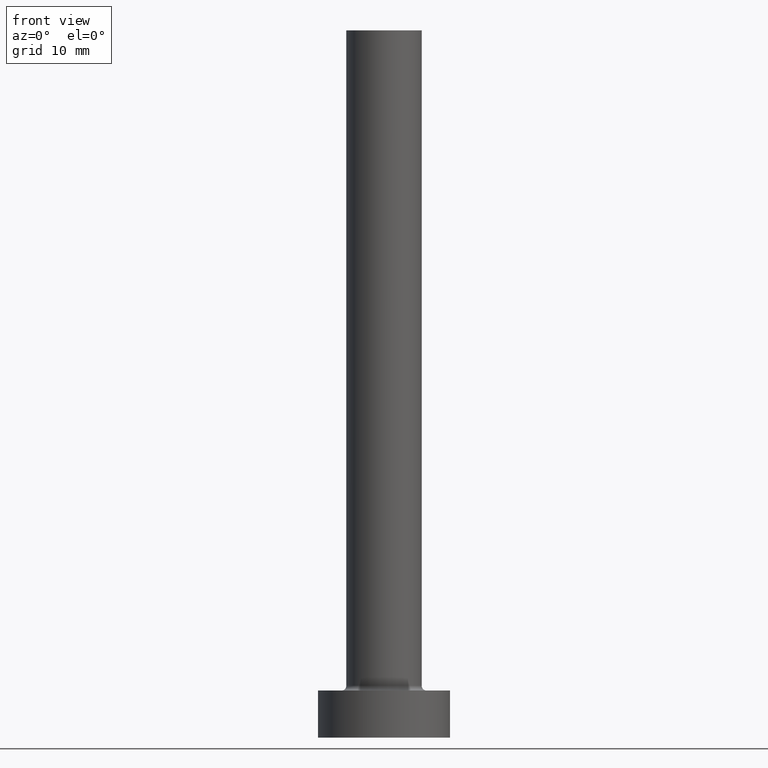
[diagram: clean part render]
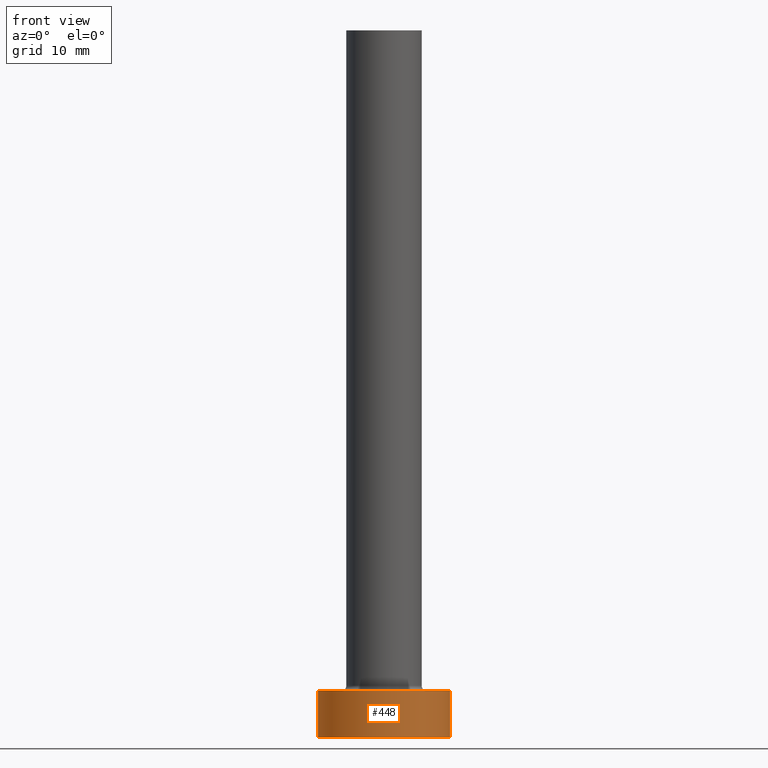
[diagram: same view with one face highlighted and labeled with its STEP entity id]
A machine part, front view. The second image highlights one B-rep face of the part: STEP entity #448.
In plain terms, the highlighted cylindrical surface (partial cylindrical patch) has radius 7 mm, axis along (-0, -0, -1).
Its self-contained STEP definition (entity closure, byte-faithful):
#19 = VERTEX_POINT ( 'NONE', #225 ) ;
#21 = DIRECTION ( 'NONE',  ( -0.000000000000000000, -0.000000000000000000, -1.000000000000000000 ) ) ;
#33 = DIRECTION ( 'NONE',  ( 0.000000000000000000, 0.000000000000000000, 1.000000000000000000 ) ) ;
#34 = CARTESIAN_POINT ( 'NONE',  ( -7.000000000000000000, 0.000000000000000000, 0.000000000000000000 ) ) ;
#63 = VERTEX_POINT ( 'NONE', #34 ) ;
#72 = CARTESIAN_POINT ( 'NONE',  ( 0.000000000000000000, 0.000000000000000000, 5.000000000000000000 ) ) ;
#75 = EDGE_CURVE ( 'NONE', #19, #63, #248, .T. ) ;
#81 = FACE_OUTER_BOUND ( 'NONE', #154, .T. ) ;
#96 = ORIENTED_EDGE ( 'NONE', *, *, #130, .F. ) ;
#107 = CARTESIAN_POINT ( 'NONE',  ( 0.000000000000000000, 0.000000000000000000, 0.000000000000000000 ) ) ;
#111 = DIRECTION ( 'NONE',  ( -1.000000000000000000, 0.000000000000000000, 0.000000000000000000 ) ) ;
#115 = AXIS2_PLACEMENT_3D ( 'NONE', #292, #227, #111 ) ;
#130 = EDGE_CURVE ( 'NONE', #19, #301, #138, .T. ) ;
#133 = AXIS2_PLACEMENT_3D ( 'NONE', #72, #293, #258 ) ;
#138 = CIRCLE ( 'NONE', #133, 7.000000000000000000 ) ;
#152 = DIRECTION ( 'NONE',  ( -0.000000000000000000, -0.000000000000000000, -1.000000000000000000 ) ) ;
#154 = EDGE_LOOP ( 'NONE', ( #168, #96, #192, #249 ) ) ;
#156 = VECTOR ( 'NONE', #152, 1000.000000000000000 ) ;
#168 = ORIENTED_EDGE ( 'NONE', *, *, #223, .F. ) ;
#192 = ORIENTED_EDGE ( 'NONE', *, *, #75, .T. ) ;
#194 = EDGE_CURVE ( 'NONE', #63, #210, #455, .T. ) ;
#198 = LINE ( 'NONE', #373, #280 ) ;
#210 = VERTEX_POINT ( 'NONE', #454 ) ;
#223 = EDGE_CURVE ( 'NONE', #301, #210, #198, .T. ) ;
#225 = CARTESIAN_POINT ( 'NONE',  ( -7.000000000000000000, 0.000000000000000000, 5.000000000000000000 ) ) ;
#227 = DIRECTION ( 'NONE',  ( -0.000000000000000000, -0.000000000000000000, -1.000000000000000000 ) ) ;
#248 = LINE ( 'NONE', #385, #156 ) ;
#249 = ORIENTED_EDGE ( 'NONE', *, *, #194, .T. ) ;
#258 = DIRECTION ( 'NONE',  ( 1.000000000000000000, 0.000000000000000000, 0.000000000000000000 ) ) ;
#261 = CYLINDRICAL_SURFACE ( 'NONE', #115, 7.000000000000000000 ) ;
#280 = VECTOR ( 'NONE', #21, 1000.000000000000000 ) ;
#292 = CARTESIAN_POINT ( 'NONE',  ( 0.000000000000000000, 0.000000000000000000, 5.000000000000000000 ) ) ;
#293 = DIRECTION ( 'NONE',  ( 0.000000000000000000, 0.000000000000000000, 1.000000000000000000 ) ) ;
#301 = VERTEX_POINT ( 'NONE', #312 ) ;
#312 = CARTESIAN_POINT ( 'NONE',  ( 7.000000000000000000, 8.572527594031473190E-16, 5.000000000000000000 ) ) ;
#373 = CARTESIAN_POINT ( 'NONE',  ( 7.000000000000000000, 8.572527594031473190E-16, 5.000000000000000000 ) ) ;
#385 = CARTESIAN_POINT ( 'NONE',  ( -7.000000000000000000, 0.000000000000000000, 5.000000000000000000 ) ) ;
#391 = DIRECTION ( 'NONE',  ( 1.000000000000000000, 0.000000000000000000, 0.000000000000000000 ) ) ;
#412 = AXIS2_PLACEMENT_3D ( 'NONE', #107, #33, #391 ) ;
#448 = ADVANCED_FACE ( 'NONE', ( #81 ), #261, .T. ) ;
#454 = CARTESIAN_POINT ( 'NONE',  ( 7.000000000000000000, 8.572527594031473190E-16, 0.000000000000000000 ) ) ;
#455 = CIRCLE ( 'NONE', #412, 7.000000000000000000 ) ;